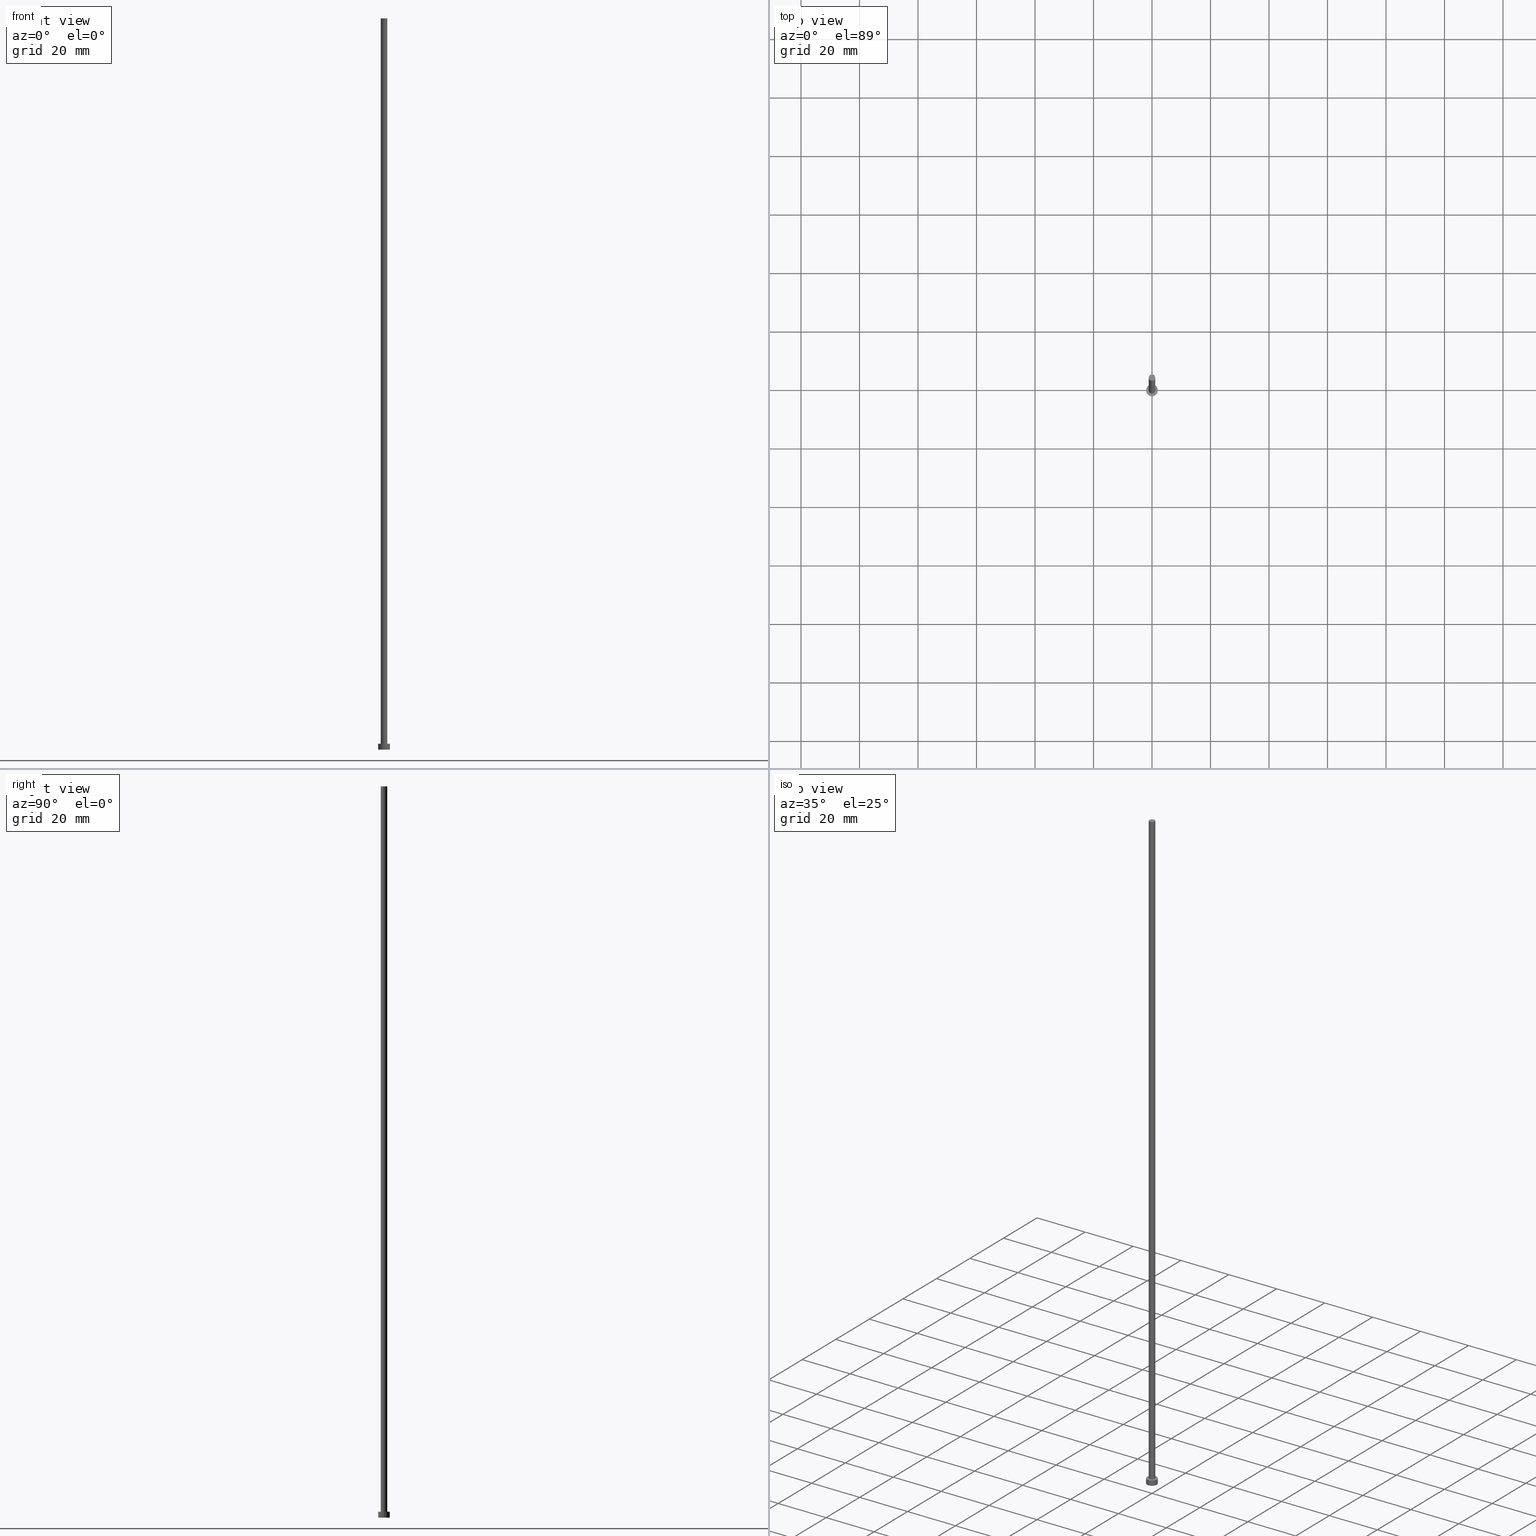
[diagram: canonical four-view strip — front | top / right | iso, engineering-drawing reading convention]
A machine part, canonical four-view strip (front | top / right | iso — engineering-drawing reading convention). The complete STEP part file that produces these views, byte-faithful:
ISO-10303-21;
HEADER;
FILE_DESCRIPTION (( 'STEP AP203' ),
    '1' );
FILE_NAME ('85ce.STEP',
    '2023-02-13T14:54:14',
    ( '' ),
    ( '' ),
    'SwSTEP 2.0',
    'SolidWorks 2019',
    '' );
FILE_SCHEMA (( 'CONFIG_CONTROL_DESIGN' ));
ENDSEC;

DATA;
#1 = AXIS2_PLACEMENT_3D ( 'NONE', #251, #83, #58 ) ;
#2 = CALENDAR_DATE ( 2023, 13, 2 ) ;
#3 = APPROVAL_STATUS ( 'not_yet_approved' ) ;
#4 = MANIFOLD_SOLID_BREP ( 'P�idat vysunut�m3', #90 ) ;
#5 = SECURITY_CLASSIFICATION_LEVEL ( 'unclassified' ) ;
#6 = CARTESIAN_POINT ( 'NONE',  ( 0.000000000000000000, 0.000000000000000000, 2.000000000000000000 ) ) ;
#7 = PERSON_AND_ORGANIZATION ( #232, #172 ) ;
#8 = VERTEX_POINT ( 'NONE', #164 ) ;
#9 = PERSON_AND_ORGANIZATION ( #232, #172 ) ;
#10 = DIRECTION ( 'NONE',  ( 0.000000000000000000, 0.000000000000000000, 1.000000000000000000 ) ) ;
#11 = ORIENTED_EDGE ( 'NONE', *, *, #46, .T. ) ;
#12 = APPROVAL ( #3, 'NEUR�EN�' ) ;
#13 = COORDINATED_UNIVERSAL_TIME_OFFSET ( 1, 0, .AHEAD. ) ;
#14 = ORIENTED_EDGE ( 'NONE', *, *, #129, .T. ) ;
#15 = DIRECTION ( 'NONE',  ( -0.000000000000000000, -0.000000000000000000, -1.000000000000000000 ) ) ;
#16 = ORIENTED_EDGE ( 'NONE', *, *, #87, .F. ) ;
#17 = DIRECTION ( 'NONE',  ( 0.000000000000000000, 0.000000000000000000, 1.000000000000000000 ) ) ;
#18 = ORIENTED_EDGE ( 'NONE', *, *, #215, .F. ) ;
#19 = LINE ( 'NONE', #71, #163 ) ;
#20 = CIRCLE ( 'NONE', #157, 1.100000000000000089 ) ;
#21 = UNCERTAINTY_MEASURE_WITH_UNIT (LENGTH_MEASURE( 1.000000000000000082E-05 ), #238, 'distance_accuracy_value', 'NONE');
#22 = APPLICATION_CONTEXT ( 'configuration controlled 3d designs of mechanical parts and assemblies' ) ;
#23 = AXIS2_PLACEMENT_3D ( 'NONE', #223, #57, #136 ) ;
#24 = APPROVAL_DATE_TIME ( #111, #12 ) ;
#25 = FACE_OUTER_BOUND ( 'NONE', #128, .T. ) ;
#26 = APPROVAL ( #200, 'NEUR�EN�' ) ;
#27 = CIRCLE ( 'NONE', #73, 2.000000000000000000 ) ;
#28 = APPLICATION_PROTOCOL_DEFINITION ( 'international standard', 'config_control_design', 1994, #22 ) ;
#29 = FACE_OUTER_BOUND ( 'NONE', #93, .T. ) ;
#30 = EDGE_LOOP ( 'NONE', ( #175, #97 ) ) ;
#31 = EDGE_CURVE ( 'NONE', #248, #245, #27, .T. ) ;
#32 = CYLINDRICAL_SURFACE ( 'NONE', #94, 1.100000000000000089 ) ;
#33 = VERTEX_POINT ( 'NONE', #231 ) ;
#34 = CARTESIAN_POINT ( 'NONE',  ( -2.000000000000000000, 0.000000000000000000, 2.000000000000000000 ) ) ;
#35 = DIRECTION ( 'NONE',  ( 0.000000000000000000, 0.000000000000000000, 1.000000000000000000 ) ) ;
#36 = EDGE_CURVE ( 'NONE', #82, #8, #228, .T. ) ;
#37 = APPROVAL_PERSON_ORGANIZATION ( #53, #26, #216 ) ;
#38 = DIRECTION ( 'NONE',  ( -1.000000000000000000, 0.000000000000000000, 0.000000000000000000 ) ) ;
#39 = AXIS2_PLACEMENT_3D ( 'NONE', #178, #132, #233 ) ;
#40 = ADVANCED_FACE ( 'NONE', ( #254, #124 ), #207, .T. ) ;
#41 = LOCAL_TIME ( 15, 54, 14.00000000000000000, #209 ) ;
#42 = ADVANCED_FACE ( 'NONE', ( #25 ), #109, .T. ) ;
#43 = SHAPE_DEFINITION_REPRESENTATION ( #243, #154 ) ;
#44 = CC_DESIGN_APPROVAL ( #166, ( #88 ) ) ;
#45 = CC_DESIGN_PERSON_AND_ORGANIZATION_ASSIGNMENT ( #190, #176, ( #60 ) ) ;
#46 = EDGE_CURVE ( 'NONE', #102, #248, #220, .T. ) ;
#47 = AXIS2_PLACEMENT_3D ( 'NONE', #55, #17, #241 ) ;
#48 =( NAMED_UNIT ( * ) PLANE_ANGLE_UNIT ( ) SI_UNIT ( $, .RADIAN. ) );
#49 = DIRECTION ( 'NONE',  ( 0.000000000000000000, 0.000000000000000000, 1.000000000000000000 ) ) ;
#50 = DIRECTION ( 'NONE',  ( -0.000000000000000000, -0.000000000000000000, -1.000000000000000000 ) ) ;
#51 = DIRECTION ( 'NONE',  ( -1.000000000000000000, 0.000000000000000000, 0.000000000000000000 ) ) ;
#52 = CIRCLE ( 'NONE', #131, 1.100000000000000089 ) ;
#53 = PERSON_AND_ORGANIZATION ( #232, #172 ) ;
#54 = ORIENTED_EDGE ( 'NONE', *, *, #62, .T. ) ;
#55 = CARTESIAN_POINT ( 'NONE',  ( 0.000000000000000000, 0.000000000000000000, 2.000000000000000000 ) ) ;
#56 = ADVANCED_FACE ( 'NONE', ( #135 ), #32, .T. ) ;
#57 = DIRECTION ( 'NONE',  ( 0.000000000000000000, 0.000000000000000000, 1.000000000000000000 ) ) ;
#58 = DIRECTION ( 'NONE',  ( 1.000000000000000000, 0.000000000000000000, 0.000000000000000000 ) ) ;
#59 = DATE_AND_TIME ( #121, #208 ) ;
#60 = PRODUCT_DEFINITION_FORMATION_WITH_SPECIFIED_SOURCE ( 'LIBOVOLN�', '', #139, .NOT_KNOWN. ) ;
#61 = ORIENTED_EDGE ( 'NONE', *, *, #165, .F. ) ;
#62 = EDGE_CURVE ( 'NONE', #70, #245, #19, .T. ) ;
#63 = MECHANICAL_CONTEXT ( 'NONE', #22, 'mechanical' ) ;
#64 = ADVANCED_FACE ( 'NONE', ( #196 ), #96, .T. ) ;
#65 = DIRECTION ( 'NONE',  ( -0.000000000000000000, -0.000000000000000000, -1.000000000000000000 ) ) ;
#66 = FACE_OUTER_BOUND ( 'NONE', #85, .T. ) ;
#67 = DIRECTION ( 'NONE',  ( -0.000000000000000000, -0.000000000000000000, -1.000000000000000000 ) ) ;
#68 = CARTESIAN_POINT ( 'NONE',  ( 0.000000000000000000, 0.000000000000000000, 250.0000000000000000 ) ) ;
#69 = LOCAL_TIME ( 15, 54, 14.00000000000000000, #13 ) ;
#70 = VERTEX_POINT ( 'NONE', #34 ) ;
#71 = CARTESIAN_POINT ( 'NONE',  ( -2.000000000000000000, 0.000000000000000000, 2.000000000000000000 ) ) ;
#72 = CARTESIAN_POINT ( 'NONE',  ( 2.000000000000000000, 2.449293598294706414E-16, 2.000000000000000000 ) ) ;
#73 = AXIS2_PLACEMENT_3D ( 'NONE', #227, #229, #252 ) ;
#74 = DATE_TIME_ROLE ( 'classification_date' ) ;
#75 = APPROVAL_ROLE ( '' ) ;
#76 = PERSON_AND_ORGANIZATION ( #232, #172 ) ;
#77 = APPLICATION_CONTEXT ( 'configuration controlled 3d designs of mechanical parts and assemblies' ) ;
#78 = ADVANCED_FACE ( 'NONE', ( #29 ), #86, .F. ) ;
#79 = VECTOR ( 'NONE', #15, 1000.000000000000000 ) ;
#80 = DIRECTION ( 'NONE',  ( 1.000000000000000000, 0.000000000000000000, 0.000000000000000000 ) ) ;
#81 = CC_DESIGN_DATE_AND_TIME_ASSIGNMENT ( #59, #122, ( #222 ) ) ;
#82 = VERTEX_POINT ( 'NONE', #99 ) ;
#83 = DIRECTION ( 'NONE',  ( 0.000000000000000000, 0.000000000000000000, 1.000000000000000000 ) ) ;
#84 = DIRECTION ( 'NONE',  ( 1.000000000000000000, 0.000000000000000000, 0.000000000000000000 ) ) ;
#85 = EDGE_LOOP ( 'NONE', ( #61, #16, #187, #14 ) ) ;
#86 = PLANE ( 'NONE',  #23 ) ;
#87 = EDGE_CURVE ( 'NONE', #82, #33, #255, .T. ) ;
#88 = SECURITY_CLASSIFICATION ( '', '', #5 ) ;
#89 = PERSON_AND_ORGANIZATION_ROLE ( 'design_supplier' ) ;
#90 = CLOSED_SHELL ( 'NONE', ( #56, #42, #64, #40, #78, #239, #188 ) ) ;
#91 = ORIENTED_EDGE ( 'NONE', *, *, #165, .T. ) ;
#92 = CALENDAR_DATE ( 2023, 13, 2 ) ;
#93 = EDGE_LOOP ( 'NONE', ( #18, #237 ) ) ;
#94 = AXIS2_PLACEMENT_3D ( 'NONE', #193, #161, #247 ) ;
#95 = DIRECTION ( 'NONE',  ( 1.000000000000000000, 0.000000000000000000, 0.000000000000000000 ) ) ;
#96 = CYLINDRICAL_SURFACE ( 'NONE', #101, 2.000000000000000000 ) ;
#97 = ORIENTED_EDGE ( 'NONE', *, *, #125, .T. ) ;
#98 = EDGE_CURVE ( 'NONE', #70, #102, #234, .T. ) ;
#99 = CARTESIAN_POINT ( 'NONE',  ( -1.100000000000000089, 0.000000000000000000, 250.0000000000000000 ) ) ;
#100 = DIRECTION ( 'NONE',  ( 1.000000000000000000, 0.000000000000000000, 0.000000000000000000 ) ) ;
#101 = AXIS2_PLACEMENT_3D ( 'NONE', #119, #249, #183 ) ;
#102 = VERTEX_POINT ( 'NONE', #72 ) ;
#103 = CARTESIAN_POINT ( 'NONE',  ( 0.000000000000000000, 0.000000000000000000, 250.0000000000000000 ) ) ;
#104 = AXIS2_PLACEMENT_3D ( 'NONE', #146, #149, #108 ) ;
#105 = PRODUCT_RELATED_PRODUCT_CATEGORY ( 'detail', '', ( #139 ) ) ;
#106 = CIRCLE ( 'NONE', #153, 2.000000000000000000 ) ;
#107 = AXIS2_PLACEMENT_3D ( 'NONE', #68, #65, #51 ) ;
#108 = DIRECTION ( 'NONE',  ( 1.000000000000000000, 0.000000000000000000, -0.000000000000000000 ) ) ;
#109 = CYLINDRICAL_SURFACE ( 'NONE', #123, 2.000000000000000000 ) ;
#110 = VERTEX_POINT ( 'NONE', #141 ) ;
#111 = DATE_AND_TIME ( #92, #169 ) ;
#112 = ORIENTED_EDGE ( 'NONE', *, *, #62, .F. ) ;
#113 = APPROVAL_DATE_TIME ( #212, #26 ) ;
#114 = CARTESIAN_POINT ( 'NONE',  ( 2.000000000000000000, 2.449293598294706414E-16, 2.000000000000000000 ) ) ;
#115 = CIRCLE ( 'NONE', #1, 1.100000000000000089 ) ;
#116 = DIRECTION ( 'NONE',  ( -0.000000000000000000, -0.000000000000000000, -1.000000000000000000 ) ) ;
#117 = CARTESIAN_POINT ( 'NONE',  ( 0.000000000000000000, 0.000000000000000000, 2.000000000000000000 ) ) ;
#118 = CARTESIAN_POINT ( 'NONE',  ( -2.000000000000000000, 0.000000000000000000, 0.000000000000000000 ) ) ;
#119 = CARTESIAN_POINT ( 'NONE',  ( 0.000000000000000000, 0.000000000000000000, 2.000000000000000000 ) ) ;
#120 = PLANE ( 'NONE',  #246 ) ;
#121 = CALENDAR_DATE ( 2023, 13, 2 ) ;
#122 = DATE_TIME_ROLE ( 'creation_date' ) ;
#123 = AXIS2_PLACEMENT_3D ( 'NONE', #6, #116, #38 ) ;
#124 = FACE_OUTER_BOUND ( 'NONE', #30, .T. ) ;
#125 = EDGE_CURVE ( 'NONE', #102, #70, #106, .T. ) ;
#126 = CALENDAR_DATE ( 2023, 13, 2 ) ;
#127 = COORDINATED_UNIVERSAL_TIME_OFFSET ( 1, 0, .AHEAD. ) ;
#128 = EDGE_LOOP ( 'NONE', ( #213, #11, #177, #112 ) ) ;
#129 = EDGE_CURVE ( 'NONE', #8, #110, #115, .T. ) ;
#130 = ORIENTED_EDGE ( 'NONE', *, *, #174, .T. ) ;
#131 = AXIS2_PLACEMENT_3D ( 'NONE', #103, #49, #95 ) ;
#132 = DIRECTION ( 'NONE',  ( 0.000000000000000000, 0.000000000000000000, 1.000000000000000000 ) ) ;
#133 = FACE_OUTER_BOUND ( 'NONE', #194, .T. ) ;
#134 = VECTOR ( 'NONE', #67, 1000.000000000000000 ) ;
#135 = FACE_OUTER_BOUND ( 'NONE', #143, .T. ) ;
#136 = DIRECTION ( 'NONE',  ( 1.000000000000000000, 0.000000000000000000, -0.000000000000000000 ) ) ;
#137 = LOCAL_TIME ( 15, 54, 14.00000000000000000, #127 ) ;
#138 = PERSON_AND_ORGANIZATION_ROLE ( 'design_owner' ) ;
#139 = PRODUCT ( '85ce', '85ce', '', ( #63 ) ) ;
#140 = ORIENTED_EDGE ( 'NONE', *, *, #129, .F. ) ;
#141 = CARTESIAN_POINT ( 'NONE',  ( 1.100000000000000089, 1.347111479062088503E-16, 2.000000000000000000 ) ) ;
#142 = ORIENTED_EDGE ( 'NONE', *, *, #174, .F. ) ;
#143 = EDGE_LOOP ( 'NONE', ( #152, #91, #130, #242 ) ) ;
#144 =( GEOMETRIC_REPRESENTATION_CONTEXT ( 3 ) GLOBAL_UNCERTAINTY_ASSIGNED_CONTEXT ( ( #21 ) ) GLOBAL_UNIT_ASSIGNED_CONTEXT ( ( #238, #48, #159 ) ) REPRESENTATION_CONTEXT ( 'NONE', 'WORKASPACE' ) );
#145 = APPROVAL_PERSON_ORGANIZATION ( #191, #166, #235 ) ;
#146 = CARTESIAN_POINT ( 'NONE',  ( 0.000000000000000000, 0.000000000000000000, 2.000000000000000000 ) ) ;
#147 = CC_DESIGN_DATE_AND_TIME_ASSIGNMENT ( #211, #74, ( #88 ) ) ;
#148 = AXIS2_PLACEMENT_3D ( 'NONE', #201, #35, #100 ) ;
#149 = DIRECTION ( 'NONE',  ( 0.000000000000000000, 0.000000000000000000, 1.000000000000000000 ) ) ;
#150 = CALENDAR_DATE ( 2023, 13, 2 ) ;
#151 = APPLICATION_PROTOCOL_DEFINITION ( 'international standard', 'config_control_design', 1994, #77 ) ;
#152 = ORIENTED_EDGE ( 'NONE', *, *, #206, .F. ) ;
#153 = AXIS2_PLACEMENT_3D ( 'NONE', #155, #162, #224 ) ;
#154 = ADVANCED_BREP_SHAPE_REPRESENTATION ( '85ce', ( #4, #39 ), #144 ) ;
#155 = CARTESIAN_POINT ( 'NONE',  ( 0.000000000000000000, 0.000000000000000000, 2.000000000000000000 ) ) ;
#156 = ORIENTED_EDGE ( 'NONE', *, *, #215, .T. ) ;
#157 = AXIS2_PLACEMENT_3D ( 'NONE', #117, #198, #84 ) ;
#158 = DIRECTION ( 'NONE',  ( 0.000000000000000000, 0.000000000000000000, 1.000000000000000000 ) ) ;
#159 =( NAMED_UNIT ( * ) SI_UNIT ( $, .STERADIAN. ) SOLID_ANGLE_UNIT ( ) );
#160 = ORIENTED_EDGE ( 'NONE', *, *, #206, .T. ) ;
#161 = DIRECTION ( 'NONE',  ( -0.000000000000000000, -0.000000000000000000, -1.000000000000000000 ) ) ;
#162 = DIRECTION ( 'NONE',  ( 0.000000000000000000, 0.000000000000000000, 1.000000000000000000 ) ) ;
#163 = VECTOR ( 'NONE', #50, 1000.000000000000000 ) ;
#164 = CARTESIAN_POINT ( 'NONE',  ( -1.100000000000000089, 0.000000000000000000, 2.000000000000000000 ) ) ;
#165 = EDGE_CURVE ( 'NONE', #33, #110, #185, .T. ) ;
#166 = APPROVAL ( #192, 'NEUR�EN�' ) ;
#167 = DESIGN_CONTEXT ( 'detailed design', #77, 'design' ) ;
#168 = CARTESIAN_POINT ( 'NONE',  ( -1.100000000000000089, 0.000000000000000000, 250.0000000000000000 ) ) ;
#169 = LOCAL_TIME ( 15, 54, 14.00000000000000000, #170 ) ;
#170 = COORDINATED_UNIVERSAL_TIME_OFFSET ( 1, 0, .AHEAD. ) ;
#171 = APPROVAL_DATE_TIME ( #210, #166 ) ;
#172 = ORGANIZATION ( 'NEUR�EN�', 'NEUR�EN�', '' ) ;
#173 = PERSON_AND_ORGANIZATION ( #232, #172 ) ;
#174 = EDGE_CURVE ( 'NONE', #110, #8, #20, .T. ) ;
#175 = ORIENTED_EDGE ( 'NONE', *, *, #98, .T. ) ;
#176 = PERSON_AND_ORGANIZATION_ROLE ( 'creator' ) ;
#177 = ORIENTED_EDGE ( 'NONE', *, *, #31, .T. ) ;
#178 = CARTESIAN_POINT ( 'NONE',  ( 0.000000000000000000, 0.000000000000000000, 0.000000000000000000 ) ) ;
#179 = CC_DESIGN_APPROVAL ( #26, ( #222 ) ) ;
#180 = CARTESIAN_POINT ( 'NONE',  ( 0.000000000000000000, 0.000000000000000000, 0.000000000000000000 ) ) ;
#181 = ORIENTED_EDGE ( 'NONE', *, *, #98, .F. ) ;
#182 = PERSON_AND_ORGANIZATION ( #232, #172 ) ;
#183 = DIRECTION ( 'NONE',  ( -1.000000000000000000, 0.000000000000000000, 0.000000000000000000 ) ) ;
#184 = EDGE_LOOP ( 'NONE', ( #197, #181, #54, #156 ) ) ;
#185 = LINE ( 'NONE', #244, #79 ) ;
#186 = ORIENTED_EDGE ( 'NONE', *, *, #87, .T. ) ;
#187 = ORIENTED_EDGE ( 'NONE', *, *, #36, .T. ) ;
#188 = ADVANCED_FACE ( 'NONE', ( #133 ), #120, .T. ) ;
#189 = CIRCLE ( 'NONE', #226, 2.000000000000000000 ) ;
#190 = PERSON_AND_ORGANIZATION ( #232, #172 ) ;
#191 = PERSON_AND_ORGANIZATION ( #232, #172 ) ;
#192 = APPROVAL_STATUS ( 'not_yet_approved' ) ;
#193 = CARTESIAN_POINT ( 'NONE',  ( 0.000000000000000000, 0.000000000000000000, 250.0000000000000000 ) ) ;
#194 = EDGE_LOOP ( 'NONE', ( #186, #160 ) ) ;
#195 = CC_DESIGN_PERSON_AND_ORGANIZATION_ASSIGNMENT ( #76, #236, ( #88 ) ) ;
#196 = FACE_OUTER_BOUND ( 'NONE', #184, .T. ) ;
#197 = ORIENTED_EDGE ( 'NONE', *, *, #46, .F. ) ;
#198 = DIRECTION ( 'NONE',  ( 0.000000000000000000, 0.000000000000000000, 1.000000000000000000 ) ) ;
#199 = CARTESIAN_POINT ( 'NONE',  ( 2.000000000000000000, 2.449293598294706414E-16, 0.000000000000000000 ) ) ;
#200 = APPROVAL_STATUS ( 'not_yet_approved' ) ;
#201 = CARTESIAN_POINT ( 'NONE',  ( 0.000000000000000000, 0.000000000000000000, 250.0000000000000000 ) ) ;
#202 = CC_DESIGN_PERSON_AND_ORGANIZATION_ASSIGNMENT ( #182, #138, ( #139 ) ) ;
#203 = CC_DESIGN_APPROVAL ( #12, ( #60 ) ) ;
#204 = CARTESIAN_POINT ( 'NONE',  ( 0.000000000000000000, 0.000000000000000000, 250.0000000000000000 ) ) ;
#205 = DIRECTION ( 'NONE',  ( -0.000000000000000000, -0.000000000000000000, -1.000000000000000000 ) ) ;
#206 = EDGE_CURVE ( 'NONE', #33, #82, #52, .T. ) ;
#207 = PLANE ( 'NONE',  #104 ) ;
#208 = LOCAL_TIME ( 15, 54, 14.00000000000000000, #225 ) ;
#209 = COORDINATED_UNIVERSAL_TIME_OFFSET ( 1, 0, .AHEAD. ) ;
#210 = DATE_AND_TIME ( #126, #41 ) ;
#211 = DATE_AND_TIME ( #2, #137 ) ;
#212 = DATE_AND_TIME ( #150, #69 ) ;
#213 = ORIENTED_EDGE ( 'NONE', *, *, #125, .F. ) ;
#214 = APPROVAL_PERSON_ORGANIZATION ( #7, #12, #75 ) ;
#215 = EDGE_CURVE ( 'NONE', #245, #248, #189, .T. ) ;
#216 = APPROVAL_ROLE ( '' ) ;
#217 = VECTOR ( 'NONE', #205, 1000.000000000000000 ) ;
#218 = DIRECTION ( 'NONE',  ( 1.000000000000000000, 0.000000000000000000, -0.000000000000000000 ) ) ;
#219 = CC_DESIGN_PERSON_AND_ORGANIZATION_ASSIGNMENT ( #9, #230, ( #222 ) ) ;
#220 = LINE ( 'NONE', #114, #134 ) ;
#221 = CYLINDRICAL_SURFACE ( 'NONE', #107, 1.100000000000000089 ) ;
#222 = PRODUCT_DEFINITION ( 'NEZN�M�', '', #60, #167 ) ;
#223 = CARTESIAN_POINT ( 'NONE',  ( 0.000000000000000000, 0.000000000000000000, 0.000000000000000000 ) ) ;
#224 = DIRECTION ( 'NONE',  ( 1.000000000000000000, 0.000000000000000000, 0.000000000000000000 ) ) ;
#225 = COORDINATED_UNIVERSAL_TIME_OFFSET ( 1, 0, .AHEAD. ) ;
#226 = AXIS2_PLACEMENT_3D ( 'NONE', #180, #10, #80 ) ;
#227 = CARTESIAN_POINT ( 'NONE',  ( 0.000000000000000000, 0.000000000000000000, 0.000000000000000000 ) ) ;
#228 = LINE ( 'NONE', #168, #217 ) ;
#229 = DIRECTION ( 'NONE',  ( 0.000000000000000000, 0.000000000000000000, 1.000000000000000000 ) ) ;
#230 = PERSON_AND_ORGANIZATION_ROLE ( 'creator' ) ;
#231 = CARTESIAN_POINT ( 'NONE',  ( 1.100000000000000089, 1.347111479062088503E-16, 250.0000000000000000 ) ) ;
#232 = PERSON ( 'NEUR�EN�', 'NEUR�EN�', 'NEUR�EN�', ('NEUR�EN�'), ('NEUR�EN�'), ('NEUR�EN�') ) ;
#233 = DIRECTION ( 'NONE',  ( 1.000000000000000000, 0.000000000000000000, 0.000000000000000000 ) ) ;
#234 = CIRCLE ( 'NONE', #47, 2.000000000000000000 ) ;
#235 = APPROVAL_ROLE ( '' ) ;
#236 = PERSON_AND_ORGANIZATION_ROLE ( 'classification_officer' ) ;
#237 = ORIENTED_EDGE ( 'NONE', *, *, #31, .F. ) ;
#238 =( LENGTH_UNIT ( ) NAMED_UNIT ( * ) SI_UNIT ( .MILLI., .METRE. ) );
#239 = ADVANCED_FACE ( 'NONE', ( #66 ), #221, .T. ) ;
#240 = CC_DESIGN_SECURITY_CLASSIFICATION ( #88, ( #60 ) ) ;
#241 = DIRECTION ( 'NONE',  ( 1.000000000000000000, 0.000000000000000000, 0.000000000000000000 ) ) ;
#242 = ORIENTED_EDGE ( 'NONE', *, *, #36, .F. ) ;
#243 = PRODUCT_DEFINITION_SHAPE ( 'NONE', 'NONE',  #222 ) ;
#244 = CARTESIAN_POINT ( 'NONE',  ( 1.100000000000000089, 1.347111479062088503E-16, 250.0000000000000000 ) ) ;
#245 = VERTEX_POINT ( 'NONE', #118 ) ;
#246 = AXIS2_PLACEMENT_3D ( 'NONE', #204, #158, #218 ) ;
#247 = DIRECTION ( 'NONE',  ( -1.000000000000000000, 0.000000000000000000, 0.000000000000000000 ) ) ;
#248 = VERTEX_POINT ( 'NONE', #199 ) ;
#249 = DIRECTION ( 'NONE',  ( -0.000000000000000000, -0.000000000000000000, -1.000000000000000000 ) ) ;
#250 = EDGE_LOOP ( 'NONE', ( #140, #142 ) ) ;
#251 = CARTESIAN_POINT ( 'NONE',  ( 0.000000000000000000, 0.000000000000000000, 2.000000000000000000 ) ) ;
#252 = DIRECTION ( 'NONE',  ( 1.000000000000000000, 0.000000000000000000, 0.000000000000000000 ) ) ;
#253 = CC_DESIGN_PERSON_AND_ORGANIZATION_ASSIGNMENT ( #173, #89, ( #60 ) ) ;
#254 = FACE_BOUND ( 'NONE', #250, .T. ) ;
#255 = CIRCLE ( 'NONE', #148, 1.100000000000000089 ) ;
ENDSEC;
END-ISO-10303-21;
